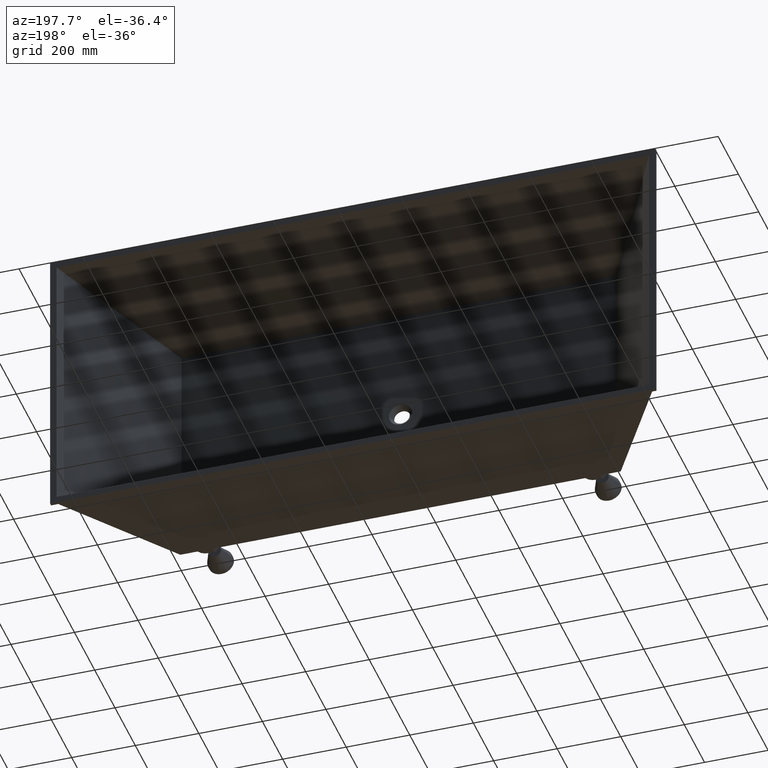
[diagram: clean part render]
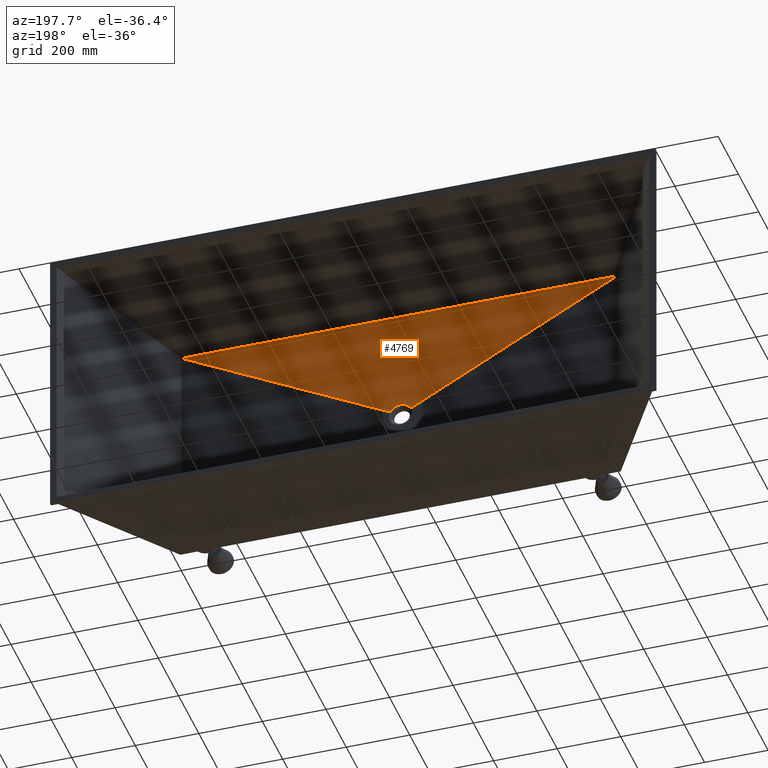
[diagram: same view with one face highlighted and labeled with its STEP entity id]
A machine part, auxiliary view. The second image highlights one B-rep face of the part: STEP entity #4769.
In plain terms, the highlighted face is a freeform B-spline surface patch.
Its self-contained STEP definition (entity closure, byte-faithful):
#38 = CARTESIAN_POINT ( 'NONE',  ( 247.5000000000000600, -457.9999999999999400, -72.49999999999995700 ) ) ;
#45 = CARTESIAN_POINT ( 'NONE',  ( 963.9045687287346000, -469.8171918882353000, -408.6110295213810600 ) ) ;
#75 = CARTESIAN_POINT ( 'NONE',  ( 964.9854429342319700, -469.8295624619480000, -410.6644784793396100 ) ) ;
#77 = CARTESIAN_POINT ( 'NONE',  ( 902.9082797450720400, -457.5371527375407900, -59.81027088757793600 ) ) ;
#96 = CARTESIAN_POINT ( 'NONE',  ( 933.8174739766941500, -470.0000000000000600, -401.4999999999999400 ) ) ;
#119 = CARTESIAN_POINT ( 'NONE',  ( 961.0416666666727700, -457.9999999999999400, -72.49999999999994300 ) ) ;
#144 = CARTESIAN_POINT ( 'NONE',  ( 962.0917202549409200, -457.5371527375407900, -59.81027088757794300 ) ) ;
#152 = VERTEX_POINT ( 'NONE', #38 ) ;
#174 = CARTESIAN_POINT ( 'NONE',  ( 935.1348610156633200, -469.9999999999999400, -401.6007073059319100 ) ) ;
#209 = CARTESIAN_POINT ( 'NONE',  ( 989.5833333333392800, -457.9999999999999400, -72.49999999999995700 ) ) ;
#225 = VECTOR ( 'NONE', #8233, 1000.000000000000000 ) ;
#233 = LINE ( 'NONE', #1204, #3243 ) ;
#293 = CARTESIAN_POINT ( 'NONE',  ( 1617.500000000000200, -457.9999999999999400, -72.49999999999995700 ) ) ;
#428 = LINE ( 'NONE', #293, #225 ) ;
#719 = CARTESIAN_POINT ( 'NONE',  ( 991.6834438631159400, -457.5371527375407900, -59.80638654583960100 ) ) ;
#742 = CARTESIAN_POINT ( 'NONE',  ( 937.7245770364796700, -469.9999999999998900, -401.9966737578259900 ) ) ;
#766 = DIRECTION ( 'NONE',  ( -0.8877376058462870300, -0.01609396655517124400, -0.4600683942707034000 ) ) ;
#771 = CARTESIAN_POINT ( 'NONE',  ( 1046.666666666672200, -457.9999999999999400, -72.49999999999995700 ) ) ;
#791 = CARTESIAN_POINT ( 'NONE',  ( 1050.868628995998500, -457.5371527375407900, -59.79111388014919700 ) ) ;
#797 = VERTEX_POINT ( 'NONE', #1903 ) ;
#802 = CARTESIAN_POINT ( 'NONE',  ( 340.4616430078945700, -457.5371527375407900, -59.40142465079669200 ) ) ;
#823 = CARTESIAN_POINT ( 'NONE',  ( 938.9967523621304500, -470.0000000000000600, -402.2918580250602600 ) ) ;
#854 = CARTESIAN_POINT ( 'NONE',  ( 1075.208333333338700, -457.9999999999999400, -72.49999999999995700 ) ) ;
#1188 = CARTESIAN_POINT ( 'NONE',  ( 922.3573437099715900, -470.0000000000000600, -403.5272045279714300 ) ) ;
#1204 = CARTESIAN_POINT ( 'NONE',  ( 578.4579162363960400, -463.9999999999999400, -244.0183361517089200 ) ) ;
#1239 = CARTESIAN_POINT ( 'NONE',  ( 927.2754229635196500, -469.9999999999997700, -401.9966737578258200 ) ) ;
#1339 = CARTESIAN_POINT ( 'NONE',  ( 1080.462096447318300, -457.5371527375407900, -59.77972844431499100 ) ) ;
#1363 = CARTESIAN_POINT ( 'NONE',  ( 941.4558423725296700, -469.9999999999999400, -403.0571871405528000 ) ) ;
#1374 = CARTESIAN_POINT ( 'NONE',  ( 913.5835326312474100, -470.0000000000000000, -409.6294442748854900 ) ) ;
#1392 = CARTESIAN_POINT ( 'NONE',  ( 1132.291666666671300, -457.9999999999999400, -72.49999999999995700 ) ) ;
#1406 = CARTESIAN_POINT ( 'NONE',  ( 447.2916666666719700, -458.0000000000000000, -72.49999999999995700 ) ) ;
#1426 = CARTESIAN_POINT ( 'NONE',  ( 1139.652319904478200, -457.5371527375407900, -59.75020923714949100 ) ) ;
#1453 = ORIENTED_EDGE ( 'NONE', *, *, #4758, .F. ) ;
#1457 = CARTESIAN_POINT ( 'NONE',  ( 942.6426562900281900, -469.9999999999998900, -403.5272045279713200 ) ) ;
#1488 = CARTESIAN_POINT ( 'NONE',  ( 1160.833333333337600, -457.9999999999999400, -72.49999999999995700 ) ) ;
#1543 = CARTESIAN_POINT ( 'NONE',  ( 1286.542083763603800, -463.9999999999999400, -244.0183361517089200 ) ) ;
#1726 = CARTESIAN_POINT ( 'NONE',  ( 732.7083333333397400, -457.9999999999999400, -72.49999999999995700 ) ) ;
#1828 = VERTEX_POINT ( 'NONE', #7584 ) ;
#1838 = CARTESIAN_POINT ( 'NONE',  ( 704.1666666666730000, -457.9999999999999400, -72.49999999999995700 ) ) ;
#1849 = CARTESIAN_POINT ( 'NONE',  ( 962.6248788901997400, -469.8049922432340400, -406.6535927692558500 ) ) ;
#1885 = CARTESIAN_POINT ( 'NONE',  ( 818.3333333333398500, -457.9999999999999400, -72.49999999999994300 ) ) ;
#1903 = CARTESIAN_POINT ( 'NONE',  ( 900.0147770455527100, -469.8295664500039900, -410.6645924834616600 ) ) ;
#1997 = CARTESIAN_POINT ( 'NONE',  ( 1169.249079796971500, -457.5371527375407900, -59.73208038205992000 ) ) ;
#2024 = CARTESIAN_POINT ( 'NONE',  ( 944.8997790948706100, -470.0000000000000000, -404.6130194704550700 ) ) ;
#2036 = CARTESIAN_POINT ( 'NONE',  ( 429.3065071942821800, -457.5371527375408500, -59.49671330191586100 ) ) ;
#2055 = CARTESIAN_POINT ( 'NONE',  ( 1217.916666666670200, -457.9999999999999400, -72.49999999999995700 ) ) ;
#2073 = CARTESIAN_POINT ( 'NONE',  ( 960.0502601328776100, -469.7794428166728800, -403.4376667021176700 ) ) ;
#2079 = CARTESIAN_POINT ( 'NONE',  ( 956.1292002087615200, -469.7428279073546900, -399.6282489703409100 ) ) ;
#2104 = CARTESIAN_POINT ( 'NONE',  ( 954.6721450887743000, -469.7297754202713800, -398.4729020289096300 ) ) ;
#2127 = CARTESIAN_POINT ( 'NONE',  ( 914.3712987052075500, -470.0000000000000000, -408.8271464080981400 ) ) ;
#2138 = CARTESIAN_POINT ( 'NONE',  ( 951.6495117423597800, -469.7044079994357200, -396.4271787597859300 ) ) ;
#2147 = CARTESIAN_POINT ( 'NONE',  ( 946.7839888978994600, -469.6689280444663300, -393.9478523571167400 ) ) ;
#2150 = CARTESIAN_POINT ( 'NONE',  ( 1228.447093251480700, -457.5371527375407900, -59.69019984258775900 ) ) ;
#2159 = EDGE_CURVE ( 'NONE', #797, #1828, #5023, .T. ) ;
#2227 = CARTESIAN_POINT ( 'NONE',  ( 950.0681269372299800, -469.6919661716676700, -395.5204569387437900 ) ) ;
#2269 = CARTESIAN_POINT ( 'NONE',  ( 901.0968983834314900, -469.8171766969582600, -408.6093524815199800 ) ) ;
#2292 = CARTESIAN_POINT ( 'NONE',  ( 945.0643760377754500, -469.6582788936430000, -393.2760232512122200 ) ) ;
#2302 = CARTESIAN_POINT ( 'NONE',  ( 939.7758282116842600, -469.6315538126347100, -391.6582831496102100 ) ) ;
#2319 = CARTESIAN_POINT ( 'NONE',  ( 910.3296550955429900, -469.7297616441680900, -398.4720693136919200 ) ) ;
#2324 = CARTESIAN_POINT ( 'NONE',  ( 928.7869864231676000, -469.6214796915286300, -391.1229754608667700 ) ) ;
#2351 = CARTESIAN_POINT ( 'NONE',  ( 913.3429946048733000, -469.7044695622231500, -396.4318674514851800 ) ) ;
#2375 = CARTESIAN_POINT ( 'NONE',  ( 904.9415648523267900, -469.7795215533284900, -403.4472075233617800 ) ) ;
#2419 = CARTESIAN_POINT ( 'NONE',  ( 902.3770267102611300, -469.8049755108545500, -406.6520639046622100 ) ) ;
#2538 = CARTESIAN_POINT ( 'NONE',  ( 814.1313710040140000, -457.5371527375407900, -59.79111388014919000 ) ) ;
#2607 = CARTESIAN_POINT ( 'NONE',  ( 945.9700538220560000, -469.9999999999999400, -405.2286713853594600 ) ) ;
#2638 = CARTESIAN_POINT ( 'NONE',  ( 1246.458333333336700, -457.9999999999999400, -72.49999999999995700 ) ) ;
#2664 = CARTESIAN_POINT ( 'NONE',  ( 1258.048348131074800, -457.5371527375407900, -59.66645377563433100 ) ) ;
#2693 = CARTESIAN_POINT ( 'NONE',  ( 947.9738688683311200, -469.9999999999999400, -406.5712205211079900 ) ) ;
#2748 = CARTESIAN_POINT ( 'NONE',  ( 1303.541666666669200, -457.9999999999999400, -72.49999999999995700 ) ) ;
#2777 = CARTESIAN_POINT ( 'NONE',  ( 1317.256131819135400, -457.5371527375407900, -59.61467084295115600 ) ) ;
#2966 = CARTESIAN_POINT ( 'NONE',  ( 958.8080424478106400, -469.7676355459781800, -402.1044332719811800 ) ) ;
#3018 = CARTESIAN_POINT ( 'NONE',  ( 919.9474022510316900, -469.6582120933608200, -393.2718410611170200 ) ) ;
#3055 = CARTESIAN_POINT ( 'NONE',  ( 900.0147770455527100, -469.8295664500039900, -410.6645924834616600 ) ) ;
#3080 = CARTESIAN_POINT ( 'NONE',  ( 606.9516518689349600, -457.5371527375408500, -59.66645377563433800 ) ) ;
#3105 = CARTESIAN_POINT ( 'NONE',  ( 925.1986576071476500, -469.6316972981999200, -391.6672465897261800 ) ) ;
#3129 = ORIENTED_EDGE ( 'NONE', *, *, #2159, .F. ) ;
#3186 = CARTESIAN_POINT ( 'NONE',  ( 929.8651389843362300, -469.9999999999999400, -401.6007073059319100 ) ) ;
#3227 = CARTESIAN_POINT ( 'NONE',  ( 304.5833333333351300, -457.9999999999999400, -72.49999999999995700 ) ) ;
#3243 = VECTOR ( 'NONE', #6129, 1000.000000000000100 ) ;
#3249 = CARTESIAN_POINT ( 'NONE',  ( 936.1825673855831800, -469.6214226295165300, -391.1199330224798700 ) ) ;
#3275 = CARTESIAN_POINT ( 'NONE',  ( 948.9074350029360400, -469.9999999999998900, -407.2979865230014400 ) ) ;
#3304 = CARTESIAN_POINT ( 'NONE',  ( 1332.083333333335500, -457.9999999999999400, -72.49999999999995700 ) ) ;
#3329 = CARTESIAN_POINT ( 'NONE',  ( 1346.862659631881800, -457.5371527375407900, -59.58663903841575400 ) ) ;
#3365 = CARTESIAN_POINT ( 'NONE',  ( 950.6287012947923400, -470.0000000000000000, -408.8271464080980900 ) ) ;
#3396 = CARTESIAN_POINT ( 'NONE',  ( 1389.166666666667900, -457.9999999999999400, -72.49999999999995700 ) ) ;
#3426 = CARTESIAN_POINT ( 'NONE',  ( 1406.081341396399900, -457.5371527375407900, -59.52765841619248000 ) ) ;
#3439 = CARTESIAN_POINT ( 'NONE',  ( 908.8799158924147200, -469.7427443562684200, -399.6202292087794500 ) ) ;
#3460 = CARTESIAN_POINT ( 'NONE',  ( 951.4164673687519100, -469.9999999999998300, -409.6294442748854300 ) ) ;
#3513 = CARTESIAN_POINT ( 'NONE',  ( 906.1836771620352200, -469.7677113593267100, -402.1116809785963300 ) ) ;
#3533 = CARTESIAN_POINT ( 'NONE',  ( 1617.500000000000200, -457.9999999999999400, -72.49999999999995700 ) ) ;
#3544 = CARTESIAN_POINT ( 'NONE',  ( 918.2164432280103500, -469.6689198920735200, -393.9471862914326200 ) ) ;
#3643 = CARTESIAN_POINT ( 'NONE',  ( 914.9245715826609700, -469.6920224920089600, -395.5244114287158900 ) ) ;
#3694 = CARTESIAN_POINT ( 'NONE',  ( 725.3476800955334100, -457.5371527375407900, -59.75020923714949800 ) ) ;
#3696 = FACE_OUTER_BOUND ( 'NONE', #6595, .T. ) ;
#3844 = CARTESIAN_POINT ( 'NONE',  ( 695.7509202030395300, -457.5371527375407900, -59.73208038205992000 ) ) ;
#3963 = CARTESIAN_POINT ( 'NONE',  ( 1417.708333333333900, -457.9999999999999400, -72.49999999999995700 ) ) ;
#3991 = CARTESIAN_POINT ( 'NONE',  ( 1435.693492805724200, -457.5371527375407900, -59.49671330191586100 ) ) ;
#4018 = CARTESIAN_POINT ( 'NONE',  ( 953.5617249774106800, -469.9999999999999400, -412.0999435219907800 ) ) ;
#4042 = CARTESIAN_POINT ( 'NONE',  ( 1503.333333333333700, -457.9999999999999400, -72.49999999999995700 ) ) ;
#4052 = CARTESIAN_POINT ( 'NONE',  ( 475.8333333333388900, -458.0000000000000600, -72.49999999999995700 ) ) ;
#4069 = CARTESIAN_POINT ( 'NONE',  ( 1524.538356992109400, -457.5371527375407900, -59.40142465079669200 ) ) ;
#4100 = CARTESIAN_POINT ( 'NONE',  ( 954.6990282299935900, -469.9999999999999400, -413.8287274623146500 ) ) ;
#4370 = CARTESIAN_POINT ( 'NONE',  ( 926.0032476378695500, -470.0000000000000600, -402.2918580250601500 ) ) ;
#4431 = LINE ( 'NONE', #1543, #7822 ) ;
#4443 = CARTESIAN_POINT ( 'NONE',  ( 920.1002209051288200, -469.9999999999998900, -404.6130194704549600 ) ) ;
#4616 = CARTESIAN_POINT ( 'NONE',  ( 281.2204374355317200, -457.5371527375407900, -59.33474440794983500 ) ) ;
#4654 = ORIENTED_EDGE ( 'NONE', *, *, #6522, .T. ) ;
#4656 = CARTESIAN_POINT ( 'NONE',  ( 1560.416666666667000, -457.9999999999999400, -72.49999999999995700 ) ) ;
#4716 = CARTESIAN_POINT ( 'NONE',  ( 1583.779562564470600, -457.5371527375407900, -59.33474440794983500 ) ) ;
#4740 = CARTESIAN_POINT ( 'NONE',  ( 955.5841675272076800, -470.0000000000000000, -415.5366723034179000 ) ) ;
#4755 = CARTESIAN_POINT ( 'NONE',  ( 458.9186586036072400, -457.5371527375409100, -59.52765841619247300 ) ) ;
#4758 = EDGE_CURVE ( 'NONE', #152, #797, #233, .T. ) ;
#4769 = ADVANCED_FACE ( 'NONE', ( #3696 ), #6555, .F. ) ;
#4771 = CARTESIAN_POINT ( 'NONE',  ( 1617.500000000000200, -457.9999999999999400, -72.49999999999995700 ) ) ;
#4809 = CARTESIAN_POINT ( 'NONE',  ( 1643.030494253200900, -457.5371527375407900, -59.26886794177184500 ) ) ;
#4926 = VERTEX_POINT ( 'NONE', #3533 ) ;
#5023 = B_SPLINE_CURVE_WITH_KNOTS ( 'NONE', 3,
 ( #3055, #2269, #2419, #2375, #3513, #3439, #2319, #2351, #3643, #3544, #3018, #3105, #2324, #3249, #2302, #2292, #2147, #2227, #2138, #2104, #2079, #2966, #2073, #1849, #45, #75 ),
 .UNSPECIFIED., .F., .F.,
 ( 4, 2, 2, 2, 2, 2, 2, 2, 2, 2, 2, 2, 4 ),
 ( 0.0000000000000000000, 0.08695406901368753200, 0.1557933758124129000, 0.2246326826111380800, 0.2934719894098633000, 0.3623112962085884800, 0.4999899098060388600, 0.6376685234034892300, 0.7065078302022144200, 0.7753471370009396000, 0.8441864437996647900, 0.9130257505983899700, 1.000000000000000000 ),
 .UNSPECIFIED. ) ;
#5147 = ORIENTED_EDGE ( 'NONE', *, *, #6939, .T. ) ;
#5276 = CARTESIAN_POINT ( 'NONE',  ( 875.4166666666731100, -457.9999999999999400, -72.49999999999994300 ) ) ;
#5379 = CARTESIAN_POINT ( 'NONE',  ( 955.6549786709848600, -470.0000000000000000, -415.6733078907061600 ) ) ;
#5399 = CARTESIAN_POINT ( 'NONE',  ( 1622.066666666666800, -457.9999999999999400, -72.49999999999995700 ) ) ;
#5429 = CARTESIAN_POINT ( 'NONE',  ( 1647.770568788299000, -457.5371527375407900, -59.26359782447760700 ) ) ;
#5435 = CARTESIAN_POINT ( 'NONE',  ( 916.0925649970633900, -470.0000000000000000, -407.2979865230015000 ) ) ;
#5452 = CARTESIAN_POINT ( 'NONE',  ( 955.7257898147619200, -470.0000000000000000, -415.8099434779944100 ) ) ;
#5462 = CARTESIAN_POINT ( 'NONE',  ( 532.9166666666725400, -458.0000000000000600, -72.49999999999995700 ) ) ;
#5480 = CARTESIAN_POINT ( 'NONE',  ( 1626.633333333333400, -457.9999999999999400, -72.49999999999995700 ) ) ;
#5514 = CARTESIAN_POINT ( 'NONE',  ( 1652.510643323397300, -457.5371527375407900, -59.25832770718336900 ) ) ;
#6018 = CARTESIAN_POINT ( 'NONE',  ( 955.7966009585391000, -470.0000000000000000, -415.9465790652827200 ) ) ;
#6053 = CARTESIAN_POINT ( 'NONE',  ( 1657.250717858495600, -457.5371527375407900, -59.25305758988913100 ) ) ;
#6079 = CARTESIAN_POINT ( 'NONE',  ( 1631.200000000000000, -457.9999999999999400, -72.49999999999995700 ) ) ;
#6129 = DIRECTION ( 'NONE',  ( 0.8877376058462868000, -0.01609396655517124700, -0.4600683942707036200 ) ) ;
#6518 = CARTESIAN_POINT ( 'NONE',  ( 647.0833333333395100, -457.9999999999999400, -72.49999999999995700 ) ) ;
#6522 = EDGE_CURVE ( 'NONE', #152, #4926, #428, .T. ) ;
#6555 = B_SPLINE_SURFACE_WITH_KNOTS ( 'NONE', 3, 1, ( 
 ( #6053, #6079, #6018 ),
 ( #5514, #5480, #5452 ),
 ( #5429, #5399, #5379 ),
 ( #4809, #4771, #4740 ),
 ( #4716, #4656, #4100 ),
 ( #4069, #4042, #4018 ),
 ( #3991, #3963, #3460 ),
 ( #3426, #3396, #3365 ),
 ( #3329, #3304, #3275 ),
 ( #2777, #2748, #2693 ),
 ( #2664, #2638, #2607 ),
 ( #2150, #2055, #2024 ),
 ( #1997, #1488, #1457 ),
 ( #1426, #1392, #1363 ),
 ( #1339, #854, #823 ),
 ( #791, #771, #742 ),
 ( #719, #209, #174 ),
 ( #144, #119, #96 ),
 ( #77, #7946, #7306 ),
 ( #6622, #5276, #3186 ),
 ( #2538, #1885, #1239 ),
 ( #8388, #7755, #4370 ),
 ( #3694, #1726, #8518 ),
 ( #3844, #1838, #1188 ),
 ( #7203, #6518, #4443 ),
 ( #3080, #8119, #7467 ),
 ( #7449, #6869, #6801 ),
 ( #6773, #5462, #5435 ),
 ( #4755, #4052, #2127 ),
 ( #2036, #1406, #1374 ),
 ( #802, #7985, #7345 ),
 ( #4616, #3227, #8535 ),
 ( #8514, #8492, #8465 ),
 ( #8441, #8414, #8382 ),
 ( #8330, #8304, #8277 ),
 ( #8251, #8221, #7919 ) ),
 .UNSPECIFIED., .F., .F., .F.,
 ( 4, 3, 2, 2, 2, 2, 2, 2, 2, 2, 2, 2, 2, 2, 2, 3, 4 ),
 ( 2, 1, 2 ),
 ( -0.01000000000000000000, 0.0000000000000000000, 0.1250000000000018300, 0.1875000000000015500, 0.2500000000000012800, 0.3125000000000009400, 0.3750000000000006700, 0.4375000000000003300, 0.5000000000000000000, 0.5624999999999997800, 0.6249999999999994400, 0.6874999999999992200, 0.7499999999999988900, 0.8124999999999985600, 0.8749999999999982200, 1.000000000000000000, 1.010000000000000000 ),
 ( -0.03857060520493009500, 0.0000000000000000000, 1.000000000000000000 ),
 .UNSPECIFIED. ) ;
#6595 = EDGE_LOOP ( 'NONE', ( #1453, #4654, #5147, #3129 ) ) ;
#6622 = CARTESIAN_POINT ( 'NONE',  ( 873.3165561368969100, -457.5371527375407900, -59.80638654583958700 ) ) ;
#6773 = CARTESIAN_POINT ( 'NONE',  ( 518.1373403681266200, -457.5371527375409100, -59.58663903841575400 ) ) ;
#6801 = CARTESIAN_POINT ( 'NONE',  ( 917.0261311316691000, -469.9999999999999400, -406.5712205211078800 ) ) ;
#6869 = CARTESIAN_POINT ( 'NONE',  ( 561.4583333333394000, -458.0000000000000600, -72.49999999999995700 ) ) ;
#6939 = EDGE_CURVE ( 'NONE', #4926, #1828, #4431, .T. ) ;
#7203 = CARTESIAN_POINT ( 'NONE',  ( 636.5529067485292700, -457.5371527375407900, -59.69019984258776600 ) ) ;
#7306 = CARTESIAN_POINT ( 'NONE',  ( 931.1825260233062000, -470.0000000000000000, -401.5000000000000600 ) ) ;
#7345 = CARTESIAN_POINT ( 'NONE',  ( 911.4382750225887500, -470.0000000000000600, -412.0999435219907800 ) ) ;
#7449 = CARTESIAN_POINT ( 'NONE',  ( 547.7438681808736200, -457.5371527375409100, -59.61467084295116300 ) ) ;
#7467 = CARTESIAN_POINT ( 'NONE',  ( 919.0299461779440000, -470.0000000000000000, -405.2286713853592900 ) ) ;
#7584 = CARTESIAN_POINT ( 'NONE',  ( 964.9854429342319700, -469.8295624619480000, -410.6644784793396100 ) ) ;
#7755 = CARTESIAN_POINT ( 'NONE',  ( 789.7916666666731100, -457.9999999999999400, -72.49999999999994300 ) ) ;
#7822 = VECTOR ( 'NONE', #766, 1000.000000000000000 ) ;
#7919 = CARTESIAN_POINT ( 'NONE',  ( 909.2033990414606700, -470.0000000000000000, -415.9465790652827200 ) ) ;
#7946 = CARTESIAN_POINT ( 'NONE',  ( 903.9583333333396200, -457.9999999999999400, -72.49999999999994300 ) ) ;
#7985 = CARTESIAN_POINT ( 'NONE',  ( 361.6666666666701500, -457.9999999999999400, -72.49999999999995700 ) ) ;
#8119 = CARTESIAN_POINT ( 'NONE',  ( 618.5416666666728800, -458.0000000000000000, -72.49999999999995700 ) ) ;
#8221 = CARTESIAN_POINT ( 'NONE',  ( 233.7999999999998100, -457.9999999999999400, -72.49999999999995700 ) ) ;
#8233 = DIRECTION ( 'NONE',  ( 1.000000000000000000, -0.0000000000000000000, -0.0000000000000000000 ) ) ;
#8251 = CARTESIAN_POINT ( 'NONE',  ( 207.7492821415037600, -457.5371527375407900, -59.25305758988913100 ) ) ;
#8277 = CARTESIAN_POINT ( 'NONE',  ( 909.2742101852378500, -470.0000000000000000, -415.8099434779944100 ) ) ;
#8304 = CARTESIAN_POINT ( 'NONE',  ( 238.3666666666665600, -457.9999999999999400, -72.49999999999995700 ) ) ;
#8330 = CARTESIAN_POINT ( 'NONE',  ( 212.4893566766022800, -457.5371527375407900, -59.25832770718336900 ) ) ;
#8382 = CARTESIAN_POINT ( 'NONE',  ( 909.3450213290149100, -470.0000000000000000, -415.6733078907061600 ) ) ;
#8388 = CARTESIAN_POINT ( 'NONE',  ( 784.5379035526937100, -457.5371527375407900, -59.77972844431498300 ) ) ;
#8414 = CARTESIAN_POINT ( 'NONE',  ( 242.9333333333333100, -457.9999999999999400, -72.49999999999995700 ) ) ;
#8441 = CARTESIAN_POINT ( 'NONE',  ( 217.2294312117008100, -457.5371527375407900, -59.26359782447760700 ) ) ;
#8465 = CARTESIAN_POINT ( 'NONE',  ( 909.4158324727920900, -470.0000000000000000, -415.5366723034179000 ) ) ;
#8492 = CARTESIAN_POINT ( 'NONE',  ( 247.5000000000000600, -457.9999999999999400, -72.49999999999995700 ) ) ;
#8514 = CARTESIAN_POINT ( 'NONE',  ( 221.9695057467993400, -457.5371527375407900, -59.26886794177184500 ) ) ;
#8518 = CARTESIAN_POINT ( 'NONE',  ( 923.5441576274699900, -470.0000000000001100, -403.0571871405527400 ) ) ;
#8535 = CARTESIAN_POINT ( 'NONE',  ( 910.3009717700060700, -469.9999999999999400, -413.8287274623146500 ) ) ;